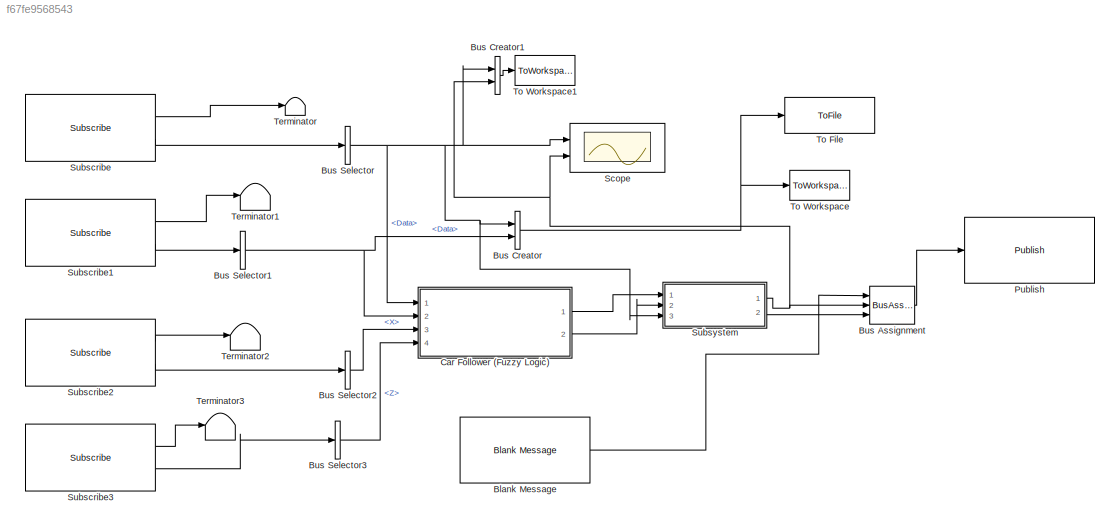
MODEL slx_f67fe9568543
KIND model
CONFIG AbsTol = auto
CONFIG FixedStep = 0.1
CONFIG MaxStep = auto
CONFIG MinStep = auto
CONFIG RelTol = 1e-3
CONFIG SampleTimeConstraint = Unconstrained
CONFIG Solver = VariableStepAuto
CONFIG SolverMode = Auto
CONFIG SolverName = VariableStepAuto
CONFIG StartTime = 0.0
CONFIG StopTime = inf
BLOCK [Reference] Blank Message  REF=robotlib/Blank Message
  Ports = [0, 1]
  SourceBlock = robotlib/Blank Message
  SourceLibraryInfo = This block requires Robotics System Toolbox
  SourceType = ROS Blank Message
BLOCK [BusAssignment] Bus Assignment
  AssignedSignals = Linear.X,Angular.Z
  Ports = [3, 1]
BLOCK [BusCreator] Bus Creator
  DisplayOption = bar
  InheritFromInputs = on
  Inputs = 2
  Ports = [2, 1]
BLOCK [BusCreator] Bus Creator1
  DisplayOption = bar
  InheritFromInputs = on
  Inputs = 2
  Ports = [2, 1]
BLOCK [BusSelector] Bus Selector
  OutputSignals = Data
  Ports = [1, 1]
BLOCK [BusSelector] Bus Selector1
  OutputSignals = Data
  Ports = [1, 1]
BLOCK [BusSelector] Bus Selector2
  OutputSignals = Linear.X
  Ports = [1, 1]
BLOCK [BusSelector] Bus Selector3
  OutputSignals = Torque.Z
  Ports = [1, 1]
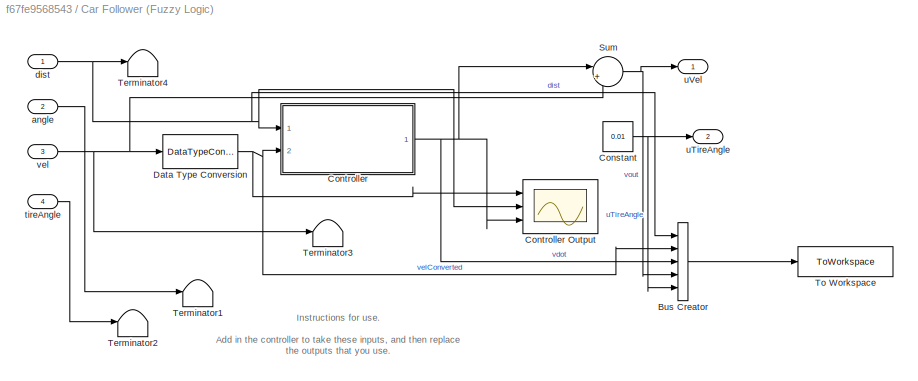
BLOCK [SubSystem] Car Follower (Fuzzy Logic)
  Ports = [4, 2]
  RequestExecContextInheritance = off
  TreatAsAtomicUnit = on
  Variant = off
BLOCK [BusCreator] Car Follower (Fuzzy Logic)/Bus Creator
  DisplayOption = bar
  InheritFromInputs = on
  Inputs = 5
  Ports = [5, 1]
BLOCK [Constant] Car Follower (Fuzzy Logic)/Constant
  Value = 0.01
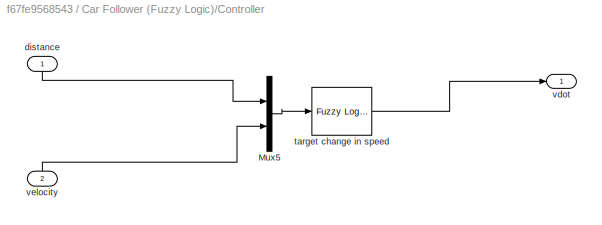
BLOCK [SubSystem] Car Follower (Fuzzy Logic)/Controller
  Ports = [2, 1]
  RequestExecContextInheritance = off
  Variant = off
BLOCK [Scope] Car Follower (Fuzzy Logic)/Controller Output
  NumInputPorts = 3
  Ports = [3]
  ScopeSpecificationString = Simulink.scopes.TimeScopeBlockCfg('CurrentConfiguration', extmgr.ConfigurationSet(extmgr.Configuration('Core','General UI',true),extmgr.Configuration('Core','Source UI',true),extmgr.Configuration('Sources','WiredSimulink',true,'DataLoggingVariableName','ScopeData2'),extmgr.Configuration('Visuals','Time Domain',true,'SerializedDisplays',{struct('MinYLimReal','-0.44739','MaxYLimReal','4.02652','YLab...<+1440ch>
BLOCK [Mux] Car Follower (Fuzzy Logic)/Controller/Mux5
  DisplayOption = bar
  Inputs = 2
  Ports = [2, 1]
BLOCK [Inport] Car Follower (Fuzzy Logic)/Controller/distance
  IconDisplay = Port number
BLOCK [Reference] Car Follower (Fuzzy Logic)/Controller/target change in speed  REF=fuzblock/Fuzzy Logic   (lib defined in mdl_858b3b3e7478)
Controller
  Ports = [1, 1]
  SourceBlock = fuzblock/Fuzzy Logic \nController
  SourceType = FIS
BLOCK [Outport] Car Follower (Fuzzy Logic)/Controller/vdot
  IconDisplay = Port number
BLOCK [Inport] Car Follower (Fuzzy Logic)/Controller/velocity
  IconDisplay = Port number
  Port = 2
BLOCK [DataTypeConversion] Car Follower (Fuzzy Logic)/Data Type Conversion
  RndMeth = Nearest
  SaturateOnIntegerOverflow = off
BLOCK [Sum] Car Follower (Fuzzy Logic)/Sum
  IconShape = round
  InputSameDT = off
  Inputs = |++
  OutDataTypeStr = Inherit: Inherit via internal rule
  Ports = [2, 1]
  SaturateOnIntegerOverflow = off
BLOCK [Terminator] Car Follower (Fuzzy Logic)/Terminator1
BLOCK [Terminator] Car Follower (Fuzzy Logic)/Terminator2
BLOCK [Terminator] Car Follower (Fuzzy Logic)/Terminator3
BLOCK [Terminator] Car Follower (Fuzzy Logic)/Terminator4
BLOCK [ToWorkspace] Car Follower (Fuzzy Logic)/To Workspace
  FixptAsFi = on
  MaxDataPoints = inf
  Ports = [1]
  SampleTime = -1
  Save2DSignal = 3-D array (concatenate along third dimension)
  SaveFormat = Timeseries
  VariableName = controllerData
BLOCK [Inport] Car Follower (Fuzzy Logic)/angle
  IconDisplay = Port number
  Port = 2
BLOCK [Inport] Car Follower (Fuzzy Logic)/dist
  IconDisplay = Port number
BLOCK [Inport] Car Follower (Fuzzy Logic)/tireAngle
  IconDisplay = Port number
  Port = 4
BLOCK [Outport] Car Follower (Fuzzy Logic)/uTireAngle
  IconDisplay = Port number
  Port = 2
BLOCK [Outport] Car Follower (Fuzzy Logic)/uVel
  IconDisplay = Port number
BLOCK [Inport] Car Follower (Fuzzy Logic)/vel
  IconDisplay = Port number
  Port = 3
BLOCK [Reference] Publish  REF=robotlib/Publish
  Ports = [1]
  SourceBlock = robotlib/Publish
  SourceLibraryInfo = This block requires Robotics System Toolbox
  SourceType = ROS Publish
BLOCK [Scope] Scope
  NumInputPorts = 2
  Ports = [2]
  ScopeSpecificationString = Simulink.scopes.TimeScopeBlockCfg('CurrentConfiguration', extmgr.ConfigurationSet(extmgr.Configuration('Core','General UI',true),extmgr.Configuration('Core','Source UI',true),extmgr.Configuration('Sources','WiredSimulink',true),extmgr.Configuration('Visuals','Time Domain',true,'SerializedDisplays',{struct('MinYLimReal','23.1925','MaxYLimReal','23.32179','YLabelReal','','MinYLimMag','23.1925','MaxY...<+1447ch>
BLOCK [Reference] Subscribe  REF=robotlib/Subscribe
  Ports = [0, 2]
  SourceBlock = robotlib/Subscribe
  SourceLibraryInfo = This block requires Robotics System Toolbox
  SourceType = ROS Subscribe
BLOCK [Reference] Subscribe1  REF=robotlib/Subscribe
  Ports = [0, 2]
  SourceBlock = robotlib/Subscribe
  SourceLibraryInfo = This block requires Robotics System Toolbox
  SourceType = ROS Subscribe
BLOCK [Reference] Subscribe2  REF=robotlib/Subscribe
  Ports = [0, 2]
  SourceBlock = robotlib/Subscribe
  SourceLibraryInfo = This block requires Robotics System Toolbox
  SourceType = ROS Subscribe
BLOCK [Reference] Subscribe3  REF=robotlib/Subscribe
  Ports = [0, 2]
  SourceBlock = robotlib/Subscribe
  SourceLibraryInfo = This block requires Robotics System Toolbox
  SourceType = ROS Subscribe
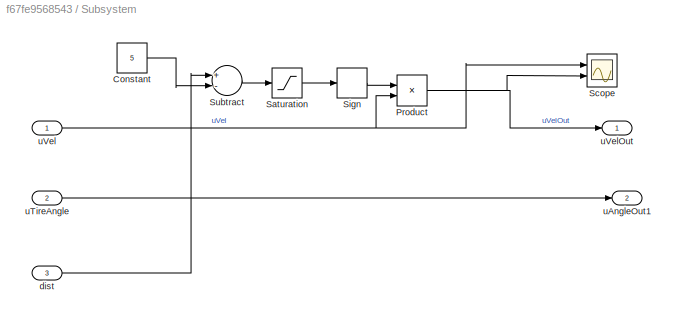
BLOCK [SubSystem] Subsystem
  Ports = [3, 2]
  RequestExecContextInheritance = off
  Variant = off
BLOCK [Constant] Subsystem/Constant
  Value = 5
BLOCK [Product] Subsystem/Product
  InputSameDT = off
  OutDataTypeStr = Inherit: Inherit via internal rule
  Ports = [2, 1]
  RndMeth = Floor
  SaturateOnIntegerOverflow = off
BLOCK [Saturate] Subsystem/Saturation
  InputPortMap = u0
  LowerLimit = 0
  Ports = [1, 1]
  UpperLimit = 1
BLOCK [Scope] Subsystem/Scope
  NumInputPorts = 2
  Ports = [2]
  ScopeSpecificationString = Simulink.scopes.TimeScopeBlockCfg('CurrentConfiguration', extmgr.ConfigurationSet(extmgr.Configuration('Core','General UI',true),extmgr.Configuration('Core','Source UI',true),extmgr.Configuration('Sources','WiredSimulink',true,'DataLoggingVariableName','ScopeData1'),extmgr.Configuration('Visuals','Time Domain',true,'SerializedDisplays',{struct('MinYLimReal','0.12647','MaxYLimReal','2.64228','YLabe...<+1470ch>
BLOCK [Signum] Subsystem/Sign
BLOCK [Sum] Subsystem/Subtract
  InputSameDT = off
  Inputs = +-
  OutDataTypeStr = Inherit: Inherit via internal rule
  Ports = [2, 1]
  SaturateOnIntegerOverflow = off
BLOCK [Inport] Subsystem/dist
  IconDisplay = Port number
  Port = 3
BLOCK [Outport] Subsystem/uAngleOut1
  IconDisplay = Port number
  Port = 2
BLOCK [Inport] Subsystem/uTireAngle
  IconDisplay = Port number
  Port = 2
BLOCK [Inport] Subsystem/uVel
  IconDisplay = Port number
BLOCK [Outport] Subsystem/uVelOut
  IconDisplay = Port number
BLOCK [Terminator] Terminator
BLOCK [Terminator] Terminator1
BLOCK [Terminator] Terminator2
BLOCK [Terminator] Terminator3
BLOCK [ToFile] To File
  Filename = distances.mat
  MatrixName = DistanceEstimator
  Ports = [1]
  SaveFormat = Timeseries
BLOCK [ToWorkspace] To Workspace
  FixptAsFi = on
  MaxDataPoints = inf
  Ports = [1]
  SampleTime = -1
  Save2DSignal = 3-D array (concatenate along third dimension)
  SaveFormat = Timeseries
  VariableName = distances
BLOCK [ToWorkspace] To Workspace1
  FixptAsFi = on
  MaxDataPoints = inf
  Ports = [1]
  SampleTime = -1
  Save2DSignal = 3-D array (concatenate along third dimension)
  SaveFormat = Timeseries
  VariableName = disvout
ANNOTATION Car Follower (Fuzzy Logic): Instructions for use. Add in the controller to take these inputs, and then replace the outputs that you use.
LINE Blank Message:1 -> Bus Assignment:1
LINE Bus Assignment:1 -> Publish:1
LINE Bus Creator1:1 -> To Workspace1:1
NET Bus Creator:1 -> To File:1, To Workspace:1
NET Bus Selector1:1 -> Bus Creator:2, Car Follower (Fuzzy Logic):2
LINE Bus Selector2:1 -> Car Follower (Fuzzy Logic):3
LINE Bus Selector3:1 -> Car Follower (Fuzzy Logic):4
NET Bus Selector:1 -> Bus Creator1:1, Bus Creator:1, Car Follower (Fuzzy Logic):1, Scope:1, Subsystem:3
LINE Car Follower (Fuzzy Logic)/Bus Creator:1 -> Car Follower (Fuzzy Logic)/To Workspace:1
NET Car Follower (Fuzzy Logic)/Constant:1 -> Car Follower (Fuzzy Logic)/Bus Creator:5, Car Follower (Fuzzy Logic)/uTireAngle:1
LINE Car Follower (Fuzzy Logic)/Controller/Mux5:1 -> Car Follower (Fuzzy Logic)/Controller/target change in speed:1
LINE Car Follower (Fuzzy Logic)/Controller/distance:1 -> Car Follower (Fuzzy Logic)/Controller/Mux5:1
LINE Car Follower (Fuzzy Logic)/Controller/target change in speed:1 -> Car Follower (Fuzzy Logic)/Controller/vdot:1
LINE Car Follower (Fuzzy Logic)/Controller/velocity:1 -> Car Follower (Fuzzy Logic)/Controller/Mux5:2
NET Car Follower (Fuzzy Logic)/Controller:1 -> Car Follower (Fuzzy Logic)/Bus Creator:3, Car Follower (Fuzzy Logic)/Controller Output:3, Car Follower (Fuzzy Logic)/Sum:1
NET Car Follower (Fuzzy Logic)/Data Type Conversion:1 -> Car Follower (Fuzzy Logic)/Bus Creator:2, Car Follower (Fuzzy Logic)/Controller Output:1, Car Follower (Fuzzy Logic)/Controller:2
NET Car Follower (Fuzzy Logic)/Sum:1 -> Car Follower (Fuzzy Logic)/Bus Creator:4, Car Follower (Fuzzy Logic)/uVel:1
LINE Car Follower (Fuzzy Logic)/angle:1 -> Car Follower (Fuzzy Logic)/Terminator1:1
NET Car Follower (Fuzzy Logic)/dist:1 -> Car Follower (Fuzzy Logic)/Bus Creator:1, Car Follower (Fuzzy Logic)/Controller Output:2, Car Follower (Fuzzy Logic)/Controller:1, Car Follower (Fuzzy Logic)/Terminator4:1
LINE Car Follower (Fuzzy Logic)/tireAngle:1 -> Car Follower (Fuzzy Logic)/Terminator2:1
NET Car Follower (Fuzzy Logic)/vel:1 -> Car Follower (Fuzzy Logic)/Data Type Conversion:1, Car Follower (Fuzzy Logic)/Sum:2, Car Follower (Fuzzy Logic)/Terminator3:1
LINE Car Follower (Fuzzy Logic):1 -> Subsystem:1
LINE Car Follower (Fuzzy Logic):2 -> Subsystem:2
LINE Subscribe1:1 -> Terminator1:1
LINE Subscribe1:2 -> Bus Selector1:1
LINE Subscribe2:1 -> Terminator2:1
LINE Subscribe2:2 -> Bus Selector2:1
LINE Subscribe3:1 -> Terminator3:1
LINE Subscribe3:2 -> Bus Selector3:1
LINE Subscribe:1 -> Terminator:1
LINE Subscribe:2 -> Bus Selector:1
LINE Subsystem/Constant:1 -> Subsystem/Subtract:2
NET Subsystem/Product:1 -> Subsystem/Scope:2, Subsystem/uVelOut:1
LINE Subsystem/Saturation:1 -> Subsystem/Sign:1
LINE Subsystem/Sign:1 -> Subsystem/Product:1
LINE Subsystem/Subtract:1 -> Subsystem/Saturation:1
LINE Subsystem/dist:1 -> Subsystem/Subtract:1
LINE Subsystem/uTireAngle:1 -> Subsystem/uAngleOut1:1
NET Subsystem/uVel:1 -> Subsystem/Product:2, Subsystem/Scope:1
NET Subsystem:1 -> Bus Assignment:2, Bus Creator1:2, Scope:2
LINE Subsystem:2 -> Bus Assignment:3
note: NET lines group one-source signal fan-out (src -> all destinations, sorted); 1:1 wires keep LINE
